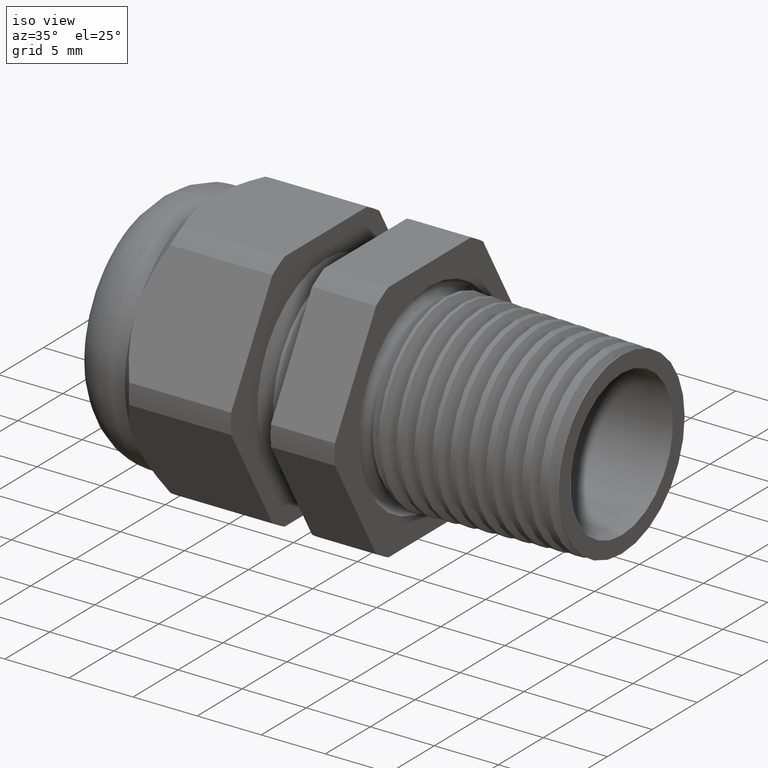
[diagram: clean part render]
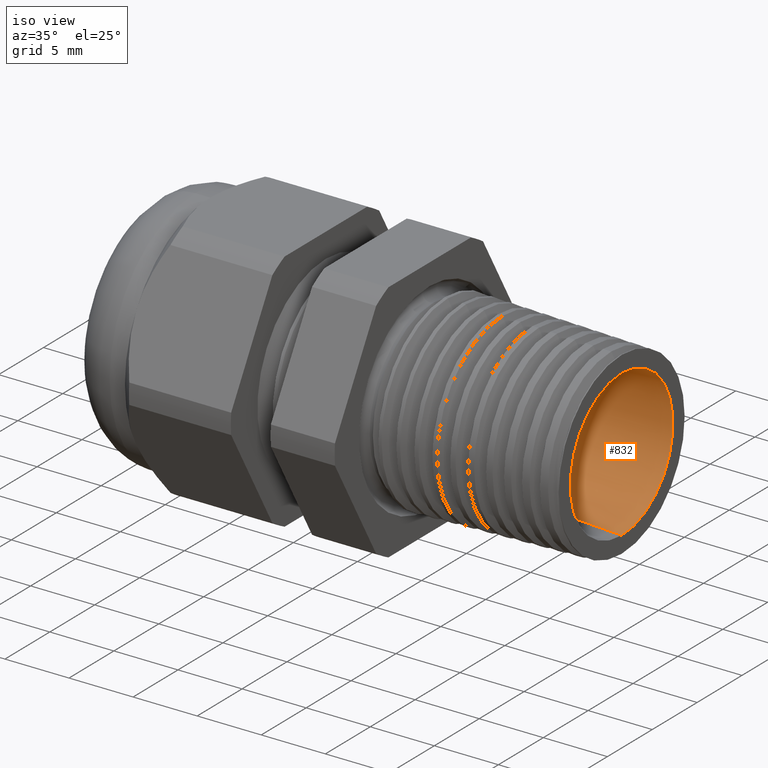
[diagram: same view with one face highlighted and labeled with its STEP entity id]
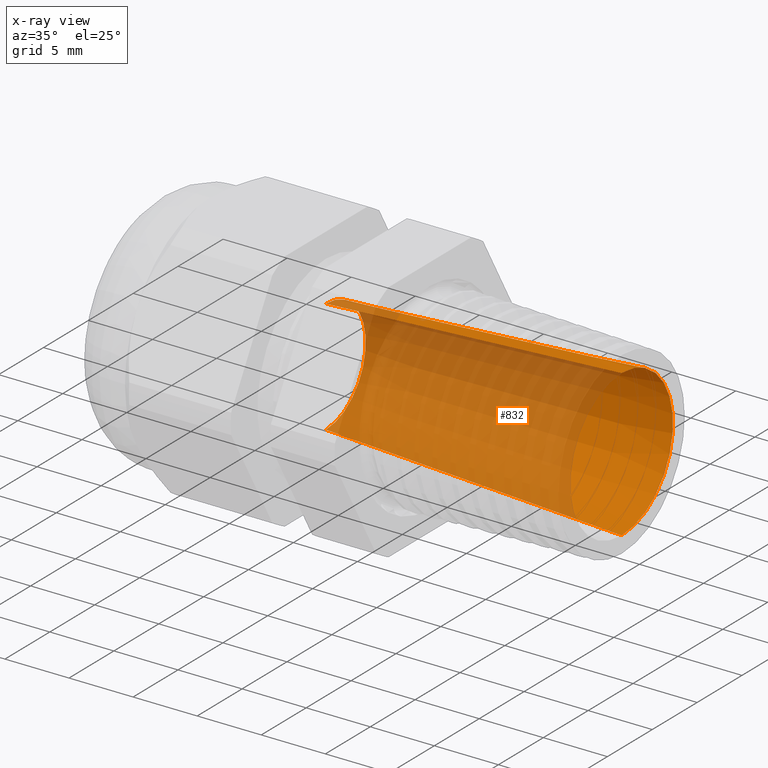
[diagram: x-ray of the same camera — body ghosted, the highlighted face saturated]
A machine part, iso view. The second image highlights one B-rep face of the part: STEP entity #832.
The next image is the same camera in x-ray: the body ghosted, the highlighted face saturated — about 70% of this face is hidden behind the body in this view.
In plain terms, the highlighted conical surface has half-angle 3.149 deg.
Its self-contained STEP definition (entity closure, byte-faithful):
#368 = VERTEX_POINT ( 'NONE', #1994 ) ;
#369 = VERTEX_POINT ( 'NONE', #1993 ) ;
#371 = EDGE_CURVE ( 'NONE', #368, #372, #1992, .T. ) ;
#372 = VERTEX_POINT ( 'NONE', #1988 ) ;
#375 = VERTEX_POINT ( 'NONE', #1982 ) ;
#377 = EDGE_CURVE ( 'NONE', #369, #375, #1981, .T. ) ;
#813 = EDGE_CURVE ( 'NONE', #375, #372, #2864, .T. ) ;
#831 = EDGE_CURVE ( 'NONE', #369, #368, #2905, .T. ) ;
#832 = ADVANCED_FACE ( 'NONE', ( #2901 ), #2900, .F. ) ;
#833 = EDGE_LOOP ( 'NONE', ( #834, #835, #886, #887 ) ) ;
#834 = ORIENTED_EDGE ( 'NONE', *, *, #371, .F. ) ;
#835 = ORIENTED_EDGE ( 'NONE', *, *, #831, .F. ) ;
#886 = ORIENTED_EDGE ( 'NONE', *, *, #377, .T. ) ;
#887 = ORIENTED_EDGE ( 'NONE', *, *, #813, .T. ) ;
#1978 = DIRECTION ( 'NONE',  ( 0.9984900214270584500, 0.0000000000000000000, -0.05493338794023411300 ) ) ;
#1979 = VECTOR ( 'NONE', #1978, 39.37007874015748100 ) ;
#1980 = CARTESIAN_POINT ( 'NONE',  ( -0.6288188976377954200, 0.0000000000000000000, -0.1749999999999999900 ) ) ;
#1981 = LINE ( 'NONE', #1980, #1979 ) ;
#1982 = CARTESIAN_POINT ( 'NONE',  ( 0.2800000000000000300, 0.0000000000000000000, -0.2249999999999999800 ) ) ;
#1988 = CARTESIAN_POINT ( 'NONE',  ( 0.2800000000000000300, 2.755455298081544500E-017, 0.2249999999999999800 ) ) ;
#1989 = DIRECTION ( 'NONE',  ( 0.9984900214270584500, 6.727399770732752000E-018, 0.05493338794023411300 ) ) ;
#1990 = VECTOR ( 'NONE', #1989, 39.37007874015748100 ) ;
#1991 = CARTESIAN_POINT ( 'NONE',  ( -0.6288188976377954200, 2.143131898507868000E-017, 0.1749999999999999900 ) ) ;
#1992 = LINE ( 'NONE', #1991, #1990 ) ;
#1993 = CARTESIAN_POINT ( 'NONE',  ( -0.6288188976377954200, 0.0000000000000000000, -0.1749999999999999900 ) ) ;
#1994 = CARTESIAN_POINT ( 'NONE',  ( -0.6288188976377954200, 2.143131898507868000E-017, 0.1749999999999999900 ) ) ;
#2860 = DIRECTION ( 'NONE',  ( 0.0000000000000000000, 0.0000000000000000000, -1.000000000000000000 ) ) ;
#2861 = DIRECTION ( 'NONE',  ( 1.000000000000000000, 0.0000000000000000000, 0.0000000000000000000 ) ) ;
#2862 = CARTESIAN_POINT ( 'NONE',  ( 0.2800000000000000300, 0.0000000000000000000, 0.0000000000000000000 ) ) ;
#2863 = AXIS2_PLACEMENT_3D ( 'NONE', #2862, #2861, #2860 ) ;
#2864 = CIRCLE ( 'NONE', #2863, 0.2249999999999999800 ) ;
#2895 = DIRECTION ( 'NONE',  ( 0.0000000000000000000, 0.0000000000000000000, -1.000000000000000000 ) ) ;
#2896 = DIRECTION ( 'NONE',  ( 1.000000000000000000, 0.0000000000000000000, 0.0000000000000000000 ) ) ;
#2897 = CARTESIAN_POINT ( 'NONE',  ( -0.6288188976377954200, 0.0000000000000000000, 0.0000000000000000000 ) ) ;
#2898 = AXIS2_PLACEMENT_3D ( 'NONE', #2897, #2896, #2895 ) ;
#2900 = CONICAL_SURFACE ( 'NONE', #2898, 0.1749999999999999900, 0.05496105406396654300 ) ;
#2901 = FACE_OUTER_BOUND ( 'NONE', #833, .T. ) ;
#2902 = DIRECTION ( 'NONE',  ( 0.0000000000000000000, 0.0000000000000000000, -1.000000000000000000 ) ) ;
#2903 = DIRECTION ( 'NONE',  ( 1.000000000000000000, 0.0000000000000000000, 0.0000000000000000000 ) ) ;
#2904 = AXIS2_PLACEMENT_3D ( 'NONE', #2909, #2903, #2902 ) ;
#2905 = CIRCLE ( 'NONE', #2904, 0.1749999999999999900 ) ;
#2909 = CARTESIAN_POINT ( 'NONE',  ( -0.6288188976377954200, 0.0000000000000000000, 0.0000000000000000000 ) ) ;